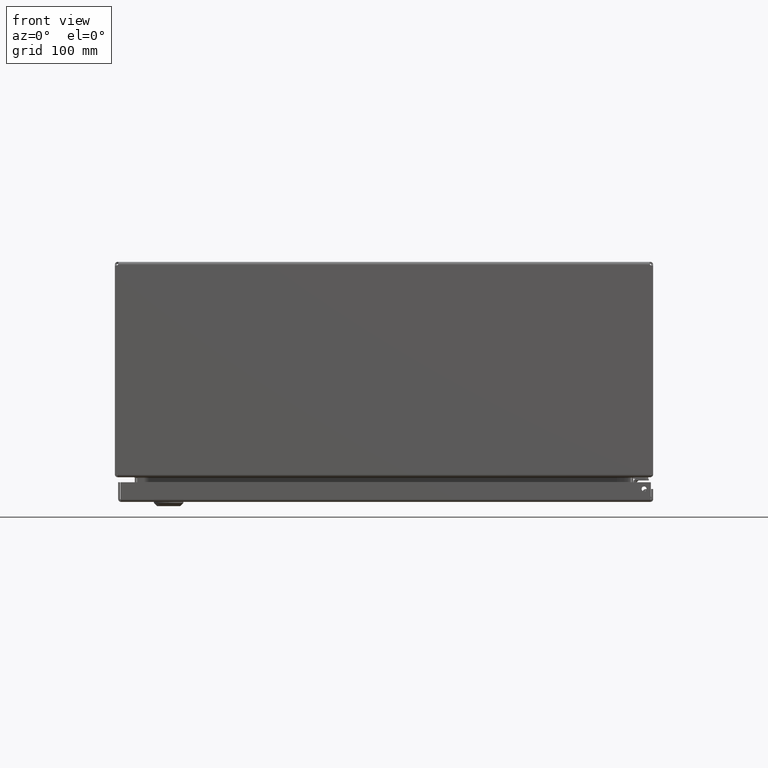
[diagram: clean part render]
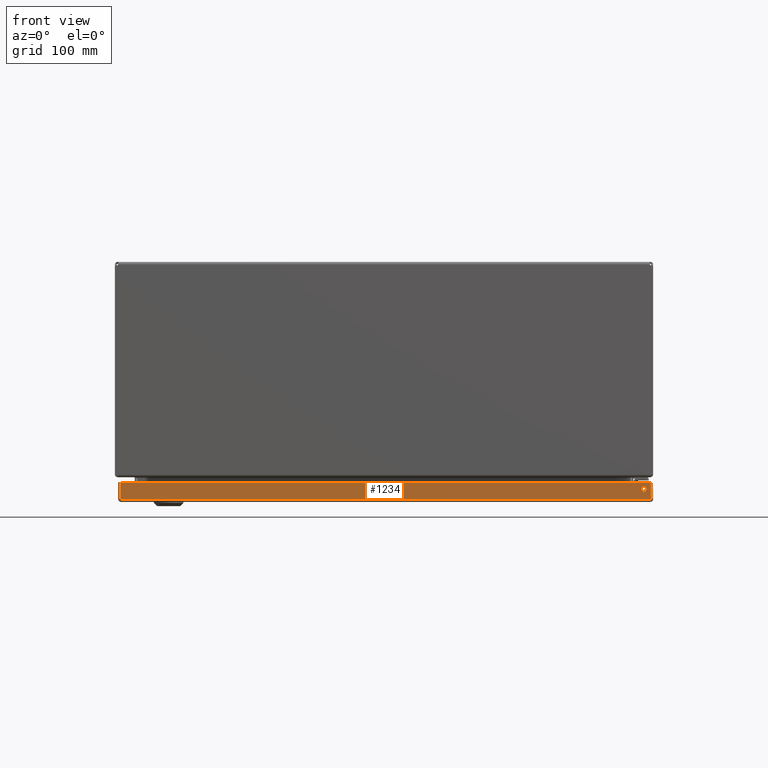
[diagram: same view with one face highlighted and labeled with its STEP entity id]
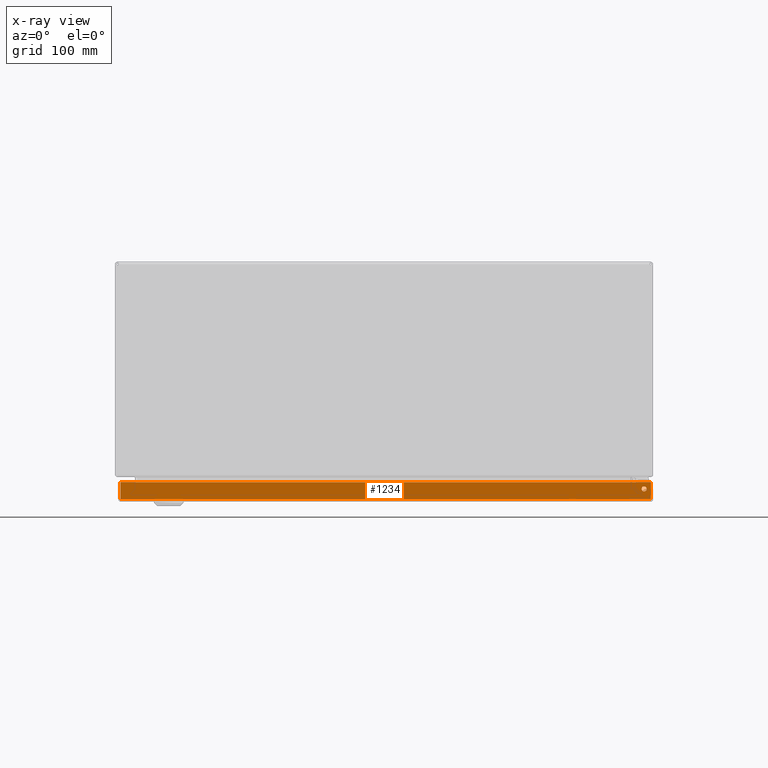
[diagram: x-ray of the same camera — body ghosted, the highlighted face saturated]
A machine part, front view. The second image highlights one B-rep face of the part: STEP entity #1234.
The next image is the same camera in x-ray: the body ghosted, the highlighted face saturated — about 0% of this face is hidden behind the body in this view.
In plain terms, the highlighted planar face has unit normal (0, 1, 0).
Its self-contained STEP definition (entity closure, byte-faithful):
#802=CARTESIAN_POINT('',(19.633951456543961,5.628216E-015,0.480000000000515));
#803=VERTEX_POINT('',#802);
#804=CARTESIAN_POINT('',(19.539951456543960,5.594825E-015,0.480000000000515));
#805=DIRECTION('',(0.0,1.0,0.0));
#806=DIRECTION('',(-1.0,0.0,0.0));
#807=AXIS2_PLACEMENT_3D('',#804,#805,#806);
#808=CIRCLE('',#807,0.094000000000000);
#809=EDGE_CURVE('',#803,#803,#808,.T.);
#980=CARTESIAN_POINT('',(0.085048543456038,-1.256485E-015,0.105250000000002));
#981=VERTEX_POINT('',#980);
#982=CARTESIAN_POINT('',(19.789951456543964,-1.256485E-015,0.105250000000001));
#983=VERTEX_POINT('',#982);
#984=CARTESIAN_POINT('',(0.085048543456040,-1.256719E-015,0.105250000000000));
#985=DIRECTION('',(1.0,0.0,0.0));
#986=VECTOR('',#985,19.704902913087924);
#987=LINE('',#984,#986);
#988=EDGE_CURVE('',#981,#983,#987,.T.);
#1069=CARTESIAN_POINT('',(19.789951456543964,-1.294739E-015,0.730000000000001));
#1070=VERTEX_POINT('',#1069);
#1071=CARTESIAN_POINT('',(19.789951456543964,-1.294739E-015,0.730000000000001));
#1072=DIRECTION('',(0.0,0.0,-1.0));
#1073=VECTOR('',#1072,0.624750000000000);
#1074=LINE('',#1071,#1073);
#1075=EDGE_CURVE('',#1070,#983,#1074,.T.);
#1184=CARTESIAN_POINT('',(0.085048543456039,-1.294739E-015,0.730000000000002));
#1185=VERTEX_POINT('',#1184);
#1186=CARTESIAN_POINT('',(0.085048543456039,-1.256485E-015,0.105250000000002));
#1187=DIRECTION('',(0.0,0.0,1.0));
#1188=VECTOR('',#1187,0.624750000000000);
#1189=LINE('',#1186,#1188);
#1190=EDGE_CURVE('',#981,#1185,#1189,.T.);
#1208=CARTESIAN_POINT('',(0.085048543456039,-1.294739E-015,0.730000000000002));
#1209=DIRECTION('',(1.0,0.0,0.0));
#1210=VECTOR('',#1209,19.704902913087924);
#1211=LINE('',#1208,#1210);
#1212=EDGE_CURVE('',#1185,#1070,#1211,.T.);
#1220=CARTESIAN_POINT('',(9.937499999999998,-1.272492E-015,0.366676066308164));
#1221=DIRECTION('',(0.0,1.0,0.0));
#1222=DIRECTION('',(1.0,0.0,0.0));
#1223=AXIS2_PLACEMENT_3D('',#1220,#1221,#1222);
#1224=PLANE('',#1223);
#1225=ORIENTED_EDGE('',*,*,#988,.T.);
#1226=ORIENTED_EDGE('',*,*,#1075,.F.);
#1227=ORIENTED_EDGE('',*,*,#1212,.F.);
#1228=ORIENTED_EDGE('',*,*,#1190,.F.);
#1229=EDGE_LOOP('',(#1225,#1226,#1227,#1228));
#1230=FACE_OUTER_BOUND('',#1229,.T.);
#1231=ORIENTED_EDGE('',*,*,#809,.T.);
#1232=EDGE_LOOP('',(#1231));
#1233=FACE_BOUND('',#1232,.T.);
#1234=ADVANCED_FACE('',(#1230,#1233),#1224,.F.);